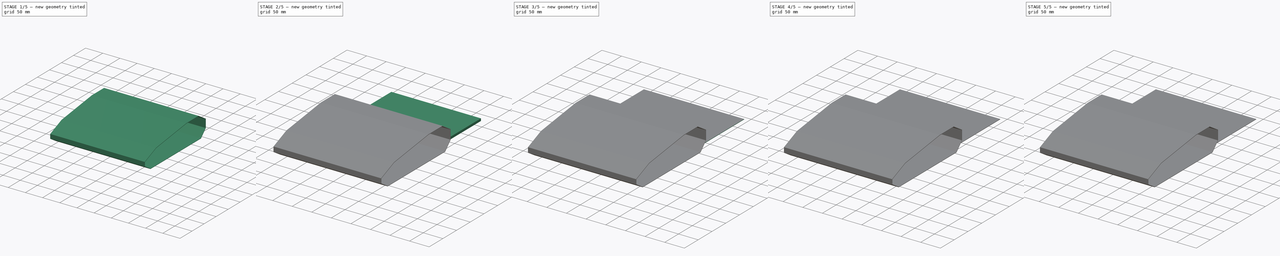
[diagram: build sequence overview — one tinted view per stage of 5, left to right]
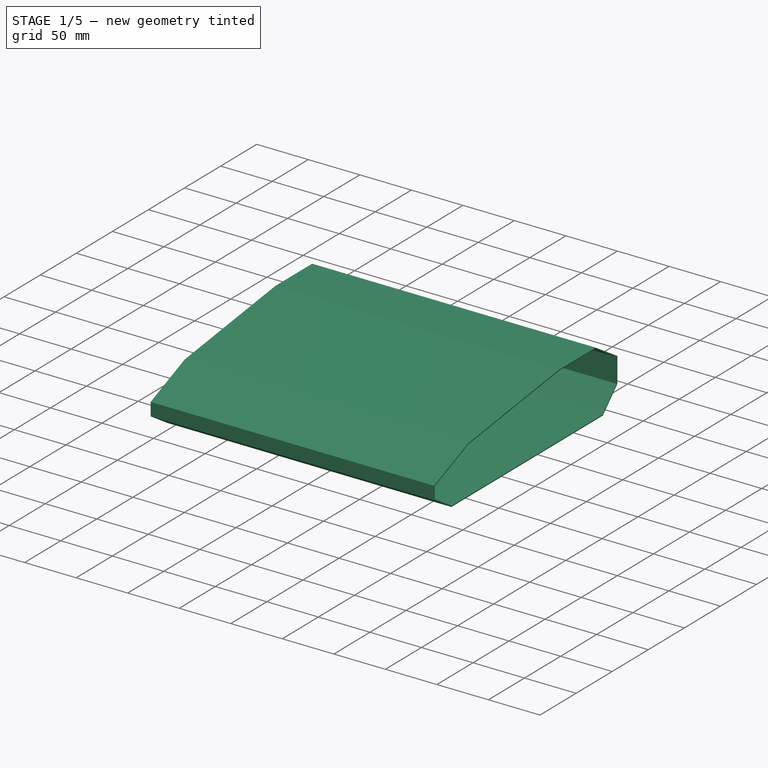
[diagram: stage 1 of 5 — iso view after this stage's code; geometry added in this stage tinted green]
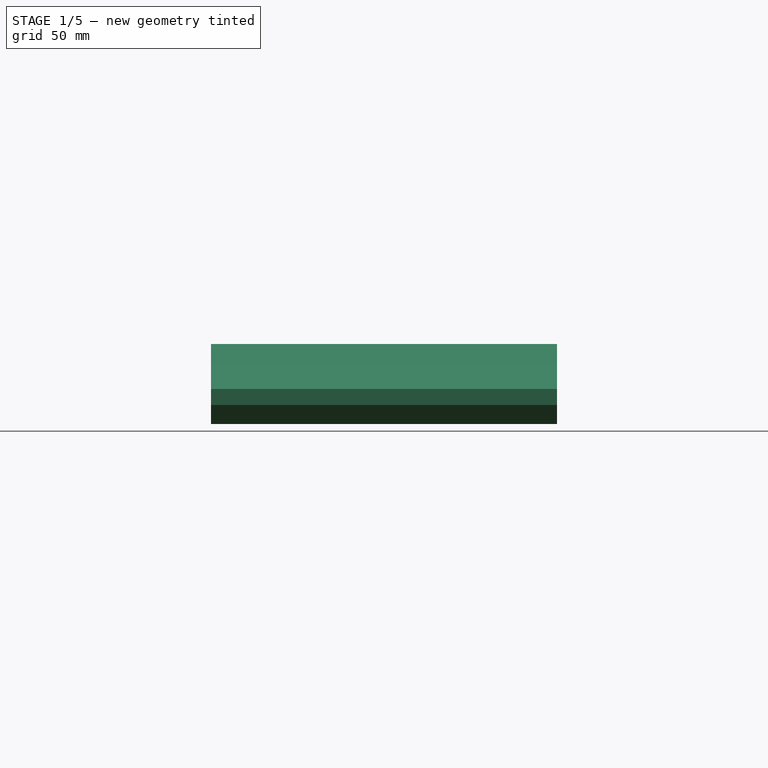
[diagram: stage 1 of 5 — front view after this stage's code; geometry added in this stage tinted green]
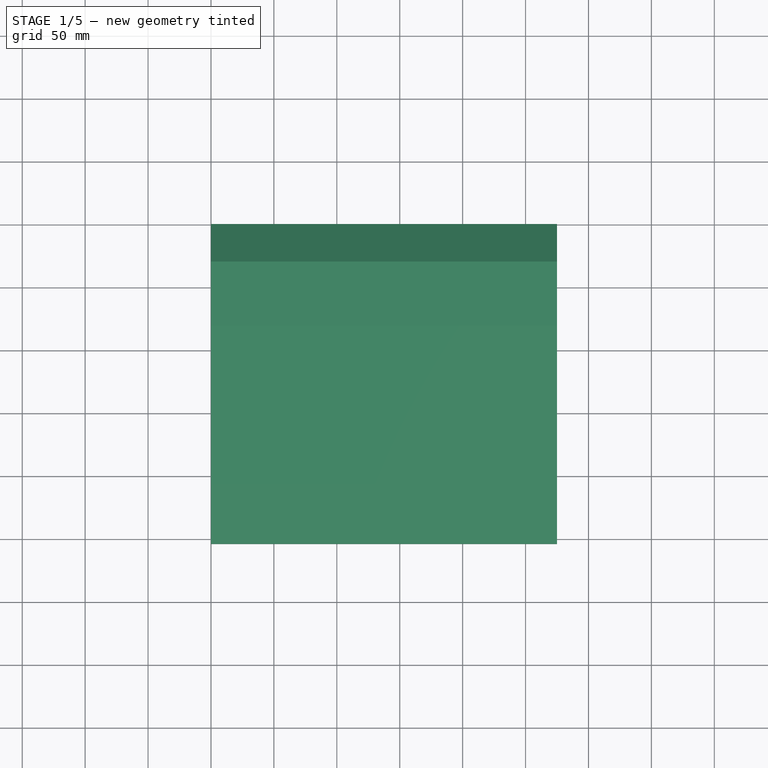
[diagram: stage 1 of 5 — top view after this stage's code; geometry added in this stage tinted green]
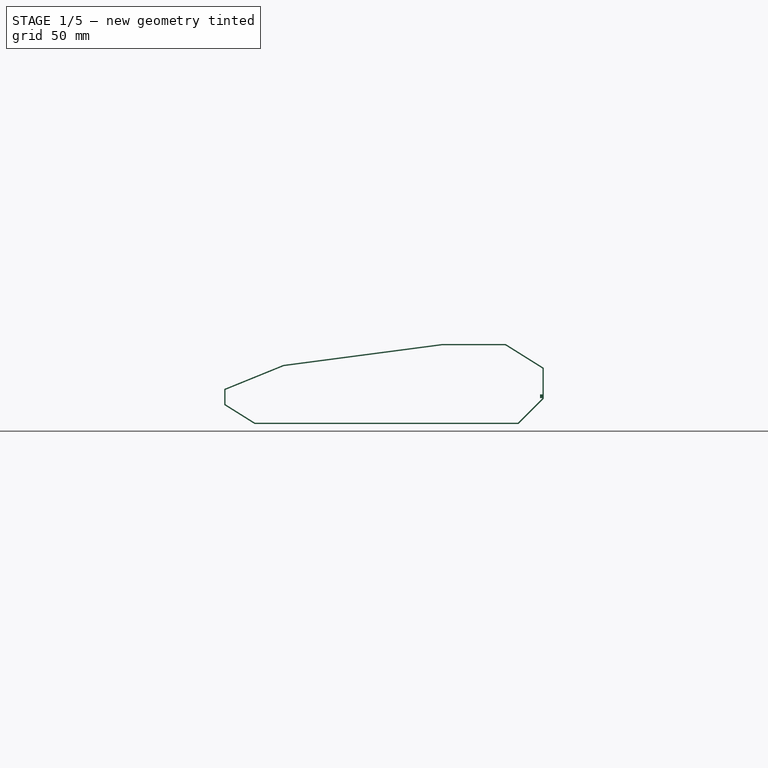
[diagram: stage 1 of 5 — right view after this stage's code; geometry added in this stage tinted green]
FCSTD DOCUMENT  (FreeCAD 0.18R)
Label: cyberdeck-alternatecase
License: All rights reserved
LicenseURL: http://en.wikipedia.org/wiki/All_rights_reserved
objects: Sketcher::SketchObject×10, PartDesign::Pad×8, PartDesign::Body×4, App::Part×4, PartDesign::Thickness×3, PartDesign::Chamfer×2, PartDesign::Pocket×1, PartDesign::AdditivePipe×1
note: 39 computed .brp shape members not serialized (recipe doc carries the construction recipe); baked Part::Feature solids carry a one-line shape summary decoded from their .brp

FEATURE [PartDesign::Body] Body001  label="Right"
  Group = -> [Sketch002,Pad002,Thickness001,Sketch003,Pocket,Chamfer001]
  Origin = -> Origin001
  Tip = -> Chamfer001
FEATURE [App::Part] Part001  label="Right Cap"
  Group = -> [Body001]
  Origin = -> Origin003
  Placement = pos=(-164,0,0) rot=(0,0,1;0rad)
FEATURE [Sketcher::SketchObject] Sketch004
  MapMode = 5
  Placement = pos=(0,0,0) rot=(0.57735,0.57735,0.57735;2.0944rad)
  Support = -> [YZ_Plane006]
  sketch-geometry (9):
    g0: LineSegment StartX=-229.899 StartY=-1.8e-15 StartZ=0 EndX=-20.1045 EndY=-1.8e-15 EndZ=0
    g1: LineSegment StartX=-20.1045 StartY=-1.8e-15 StartZ=0 EndX=0 EndY=20.1045 EndZ=0
    g2: LineSegment StartX=0 StartY=20.1045 StartZ=0 EndX=0 EndY=44.5808 EndZ=0
    g3: LineSegment StartX=-81.03 StartY=63.5 StartZ=0 EndX=-206.943 EndY=46.9232 EndZ=0
    g4: LineSegment StartX=-254 StartY=27.7835 StartZ=0 EndX=-254 EndY=15.0835 EndZ=0
    g5: LineSegment StartX=-254 StartY=15.0835 StartZ=0 EndX=-229.899 EndY=-1.8e-15 EndZ=0
    g6: LineSegment StartX=-81.03 StartY=63.5 StartZ=0 EndX=-30.23 EndY=63.5 EndZ=0
    g7: LineSegment StartX=-30.23 StartY=63.5 StartZ=0 EndX=0 EndY=44.5808 EndZ=0
    g8: LineSegment StartX=-206.943 StartY=46.9232 StartZ=0 EndX=-254 EndY=27.7835 EndZ=0
  constraints (27):
    c: Coincident(g0,g1)
    c: Coincident(g1,g2)
    c: Coincident(g4,g5)
    c: Coincident(g5,g0)
    c: Vertical(g2)
    c: Horizontal(g0)
    c: Vertical(g4)
    c: Distance(g3) = 127
    c: Angle(g0,g3) = 0.1309
    c: Horizontal(g6)
    c: Coincident(g6,g7)
    c: Coincident(g2,g7)
    c: Coincident(g6,g3)
    c: Equal(g5,g1)
    c: Coincident(g8,g4)
    c: Coincident(g8,g3)
    c: Distance(g8) = 50.8
    c: Equal(g8,g6)
    c: DistanceY(g0,g6) = 63.5
    c: DistanceX(g4,g2) = 254
    c: Angle(g1,g0) = 2.35619
    c: Parallel(g7,g5)
    c: Angle(g6,g7) = 2.58239
    c: DistanceX(g4,g3) = 172.97
    c: DistanceY(g4,g4) = 12.7
    c: Vertical(g1,g-1)
    c: Horizontal(g0,g-1)
FEATURE [PartDesign::Pad] Pad003
  Length = 275
  Length2 = 100
  Placement = pos=(0,0,0) rot=(0.57735,0.57735,0.57735;2.0944rad)
  Profile = -> Sketch004
  Type = 0
FEATURE [PartDesign::Body] Body004  label="LCD"
  Group = -> [Sketch007,Pad006,Sketch008,Pad007]
  Origin = -> Origin008
  Tip = -> Pad007
FEATURE [App::Part] Part003  label="Display"
  Group = -> [Body004]
  Origin = -> Origin006
  Placement = pos=(-446,-157.314,88.8481) rot=(1,0,0;0.1309rad)
FEATURE [PartDesign::Thickness] Thickness002
  Base = -> Pad003 [Face11,Face10]
  BaseFeature = -> Pad003
  Join = 0
  Mode = 0
  Reversed = true
  Value = 1
FEATURE [Sketcher::SketchObject] Sketch009
  ExternalGeometry = -> [Thickness002]
  MapMode = 5
  Placement = pos=(-4e-16,-1,3e-16) rot=(1,0,0;1.5708rad)
  Support = -> [Thickness002]
  sketch-geometry (4):
    g0: LineSegment StartX=3 StartY=23.5187 StartZ=0 EndX=-1.15e-14 EndY=23.5187 EndZ=0
    g1: LineSegment StartX=-1.15e-14 StartY=23.5187 StartZ=0 EndX=-1.15e-14 EndY=20.5187 EndZ=0
    g2: LineSegment StartX=-1.15e-14 StartY=20.5187 StartZ=0 EndX=3 EndY=20.5187 EndZ=0
    g3: LineSegment StartX=3 StartY=20.5187 StartZ=0 EndX=3 EndY=23.5187 EndZ=0
  constraints (11):
    c: Coincident(g0,g1)
    c: Coincident(g2,g3)
    c: Coincident(g3,g0)
    c: Horizontal(g0)
    c: Horizontal(g2)
    c: Vertical(g1)
    c: Vertical(g3)
    c: DistanceY(g1,g1) = 3
    c: Coincident(g1,g-3)
    c: Coincident(g2,g1)
    c: Equal(g0,g1)
FEATURE [PartDesign::Pad] Pad008
  BaseFeature = -> Thickness002
  Length = 2
  Length2 = 100
  Profile = -> Sketch009
  Type = 0
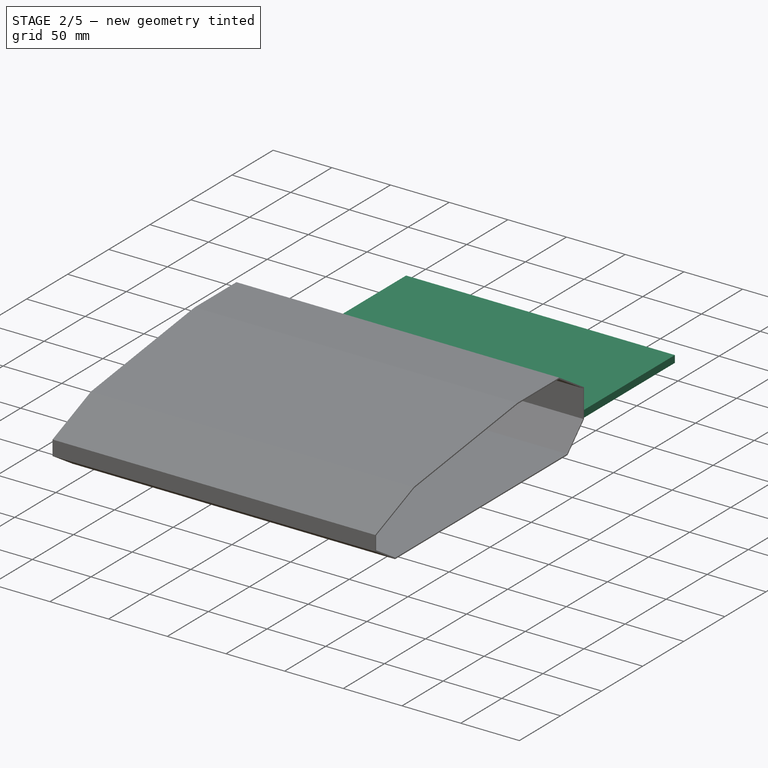
[diagram: stage 2 of 5 — iso view after this stage's code; geometry added in this stage tinted green]
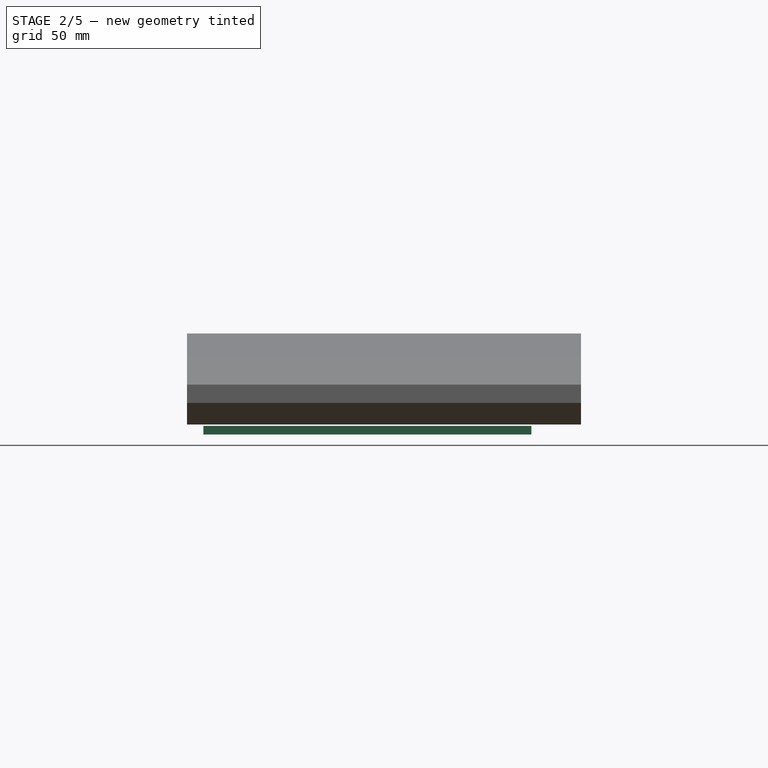
[diagram: stage 2 of 5 — front view after this stage's code; geometry added in this stage tinted green]
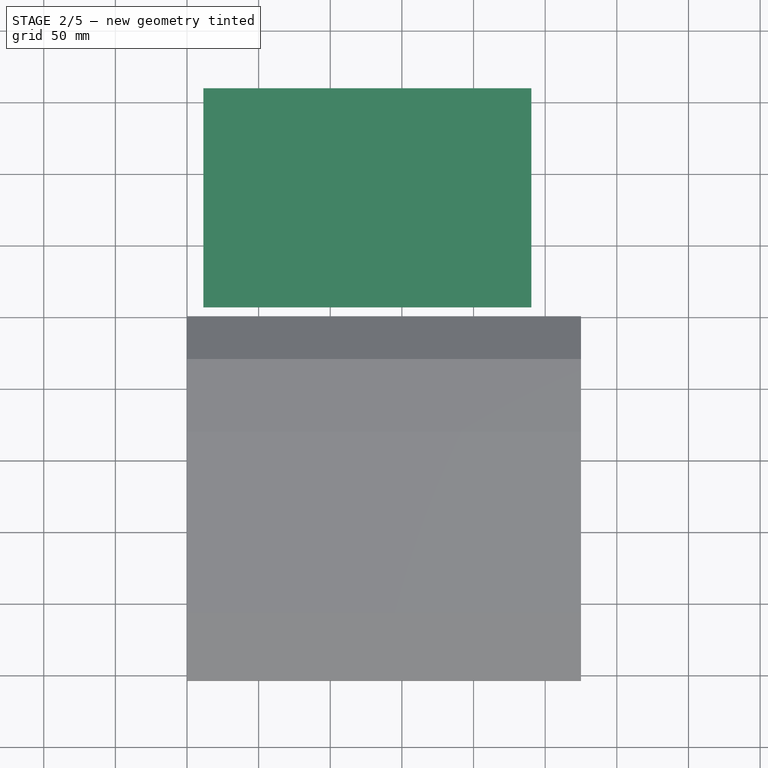
[diagram: stage 2 of 5 — top view after this stage's code; geometry added in this stage tinted green]
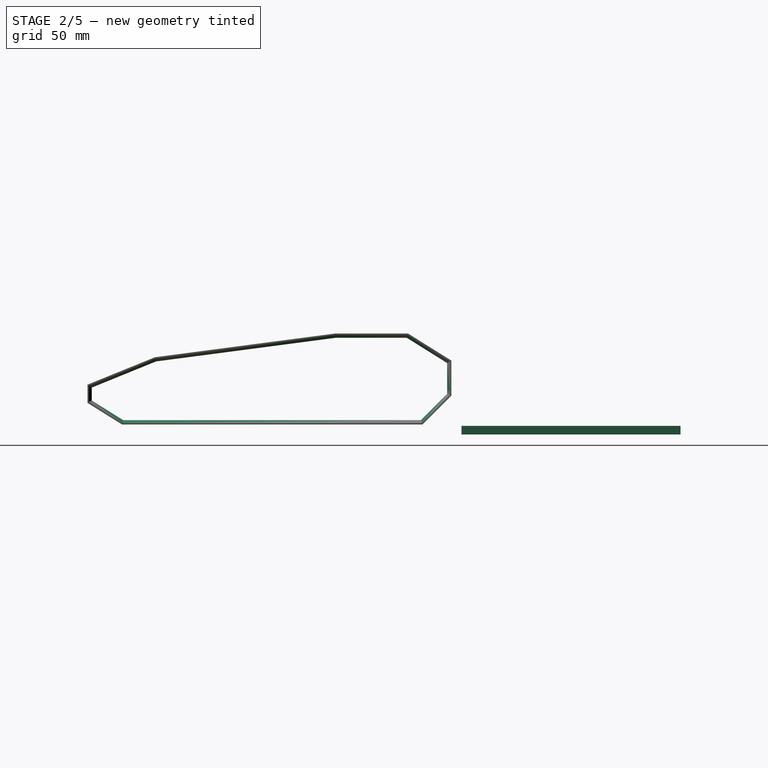
[diagram: stage 2 of 5 — right view after this stage's code; geometry added in this stage tinted green]
FEATURE [Sketcher::SketchObject] Sketch007
  AttachmentOffset = pos=(0,0,-7) rot=(0,0,1;0rad)
  MapMode = 5
  Placement = pos=(0,0,-7) rot=(0,0,1;0rad)
  Support = -> [XY_Plane008]
  sketch-geometry (4):
    g0: LineSegment StartX=11.4 StartY=159.95 StartZ=0 EndX=240.4 EndY=159.95 EndZ=0
    g1: LineSegment StartX=240.4 StartY=159.95 StartZ=0 EndX=240.4 EndY=7.05 EndZ=0
    g2: LineSegment StartX=240.4 StartY=7.05 StartZ=0 EndX=11.4 EndY=7.05 EndZ=0
    g3: LineSegment StartX=11.4 StartY=7.05 StartZ=0 EndX=11.4 EndY=159.95 EndZ=0
  constraints (12):
    c: Coincident(g0,g1)
    c: Coincident(g1,g2)
    c: Coincident(g2,g3)
    c: Coincident(g3,g0)
    c: Horizontal(g0)
    c: Horizontal(g2)
    c: Vertical(g1)
    c: Vertical(g3)
    c: DistanceX(g2,g2) = 229
    c: DistanceY(g1,g1) = 152.9
    c: DistanceX(g-1,g2) = 11.4
    c: DistanceY(g-1,g2) = 7.05
FEATURE [PartDesign::Pad] Pad006
  Length = 6
  Length2 = 100
  Profile = -> Sketch007
  Type = 0
FEATURE [Sketcher::SketchObject] Sketch010
  ExternalGeometry = -> [Pad008]
  MapMode = 5
  Placement = pos=(0,5.2e-15,23.5187) rot=(0,0,1;0rad)
  Support = -> [Pad008]
  sketch-geometry (5):
    g0: LineSegment StartX=3 StartY=-3 StartZ=0 EndX=5 EndY=-1 EndZ=0
    g1: LineSegment StartX=5.0093 StartY=-0.992624 StartZ=0 EndX=3.0093 EndY=-0.992624 EndZ=0
    g2: LineSegment StartX=3 StartY=-3 StartZ=0 EndX=3 EndY=-1 EndZ=0
    g3: LineSegment StartX=3.39827 StartY=-0.662669 StartZ=0 EndX=4.61766 EndY=-0.694255 EndZ=0
    g4: LineSegment StartX=3 StartY=-1 StartZ=0 EndX=5 EndY=-1 EndZ=0
  constraints (7):
    c: Coincident(g0,g-5)
    c: PointOnObject(g0,g-3)
    c: Angle(g0,g-5) = 2.35619
    c: Coincident(g2,g-3)
    c: Coincident(g2,g0)
    c: Coincident(g4,g0)
    c: Coincident(g2,g4)
FEATURE [PartDesign::Pad] Pad009
  BaseFeature = -> Pad008
  Length = 10
  Length2 = 100
  Profile = -> Sketch010
  Reversed = true
  Type = 3
  UpToFace = -> Pad008 [Face23]
FEATURE [Sketcher::SketchObject] Sketch011
  ExternalGeometry = -> [Pad009]
  MapMode = 5
  Placement = pos=(0,5.2e-15,23.5187) rot=(0,0,1;0rad)
  Support = -> [Pad009]
  sketch-geometry (4):
    g0: LineSegment StartX=-1.2e-14 StartY=-1 StartZ=0 EndX=5 EndY=-1 EndZ=0
    g1: LineSegment StartX=5 StartY=-1 StartZ=0 EndX=3 EndY=-3 EndZ=0
    g2: LineSegment StartX=-1.29e-14 StartY=-3 StartZ=0 EndX=3 EndY=-3 EndZ=0
    g3: LineSegment StartX=-1.2e-14 StartY=-1 StartZ=0 EndX=-1.29e-14 EndY=-3 EndZ=0
  constraints (8):
    c: Coincident(g-4,g0)
    c: Coincident(g0,g-5)
    c: Coincident(g1,g-3)
    c: Coincident(g1,g0)
    c: Coincident(g2,g1)
    c: Coincident(g-3,g2)
    c: Coincident(g3,g2)
    c: Coincident(g3,g0)
FEATURE [PartDesign::AdditivePipe] AdditivePipe
  AuxilleryCurvelinear = true
  AuxillerySpineTangent = false
  BaseFeature = -> Pad009
  Binormal = (0,0,0)
  Mode = 0
  Profile = -> Sketch011
  Spine = -> Pad009 [Edge21,Edge19,Edge18,Edge17,Edge26,Edge25,Edge24,Edge23,Edge22]
  SpineTangent = false
  Transformation = 0
  Transition = 1
FEATURE [PartDesign::Body] Body002
  Group = -> [Sketch004,Pad003,Thickness002,Sketch009,Pad008,Sketch010,Pad009,Sketch011,AdditivePipe]
  Origin = -> Origin005
  Tip = -> AdditivePipe
FEATURE [App::Part] Part002  label="Body"
  Group = -> [Body002]
  Origin = -> Origin004
  Placement = pos=(-455,0,0) rot=(0,0,1;0rad)
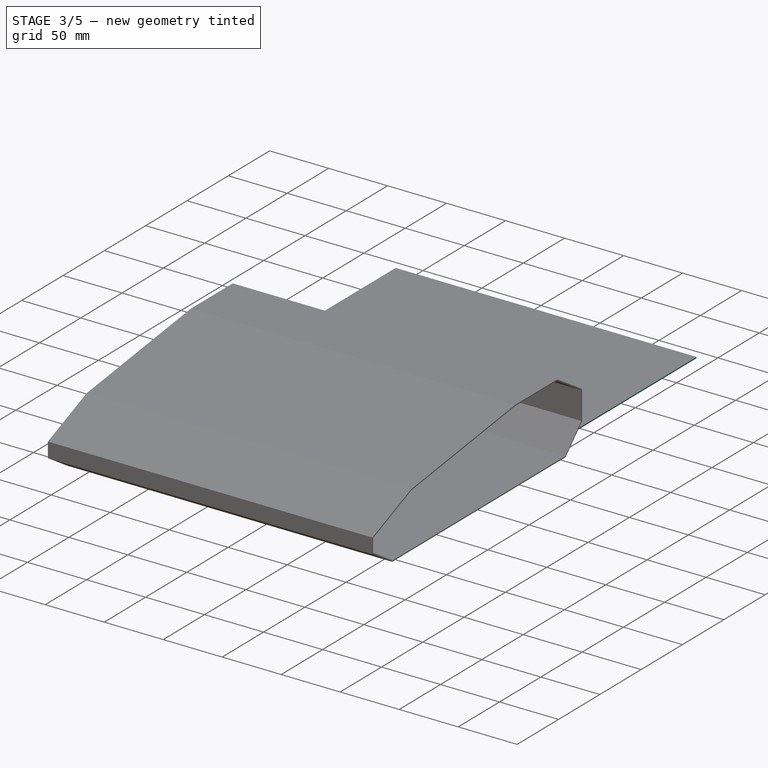
[diagram: stage 3 of 5 — iso view after this stage's code; geometry added in this stage tinted green]
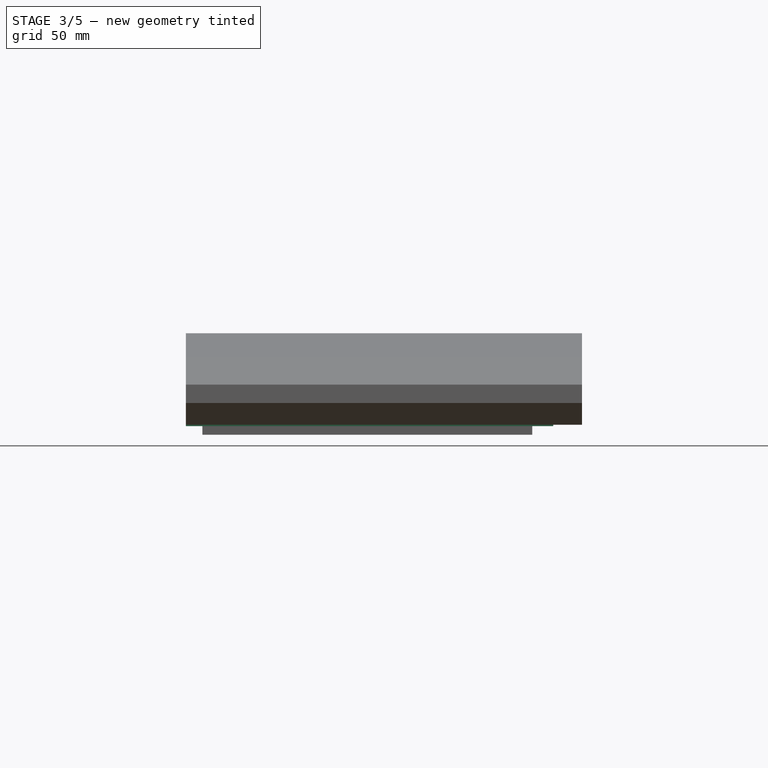
[diagram: stage 3 of 5 — front view after this stage's code; geometry added in this stage tinted green]
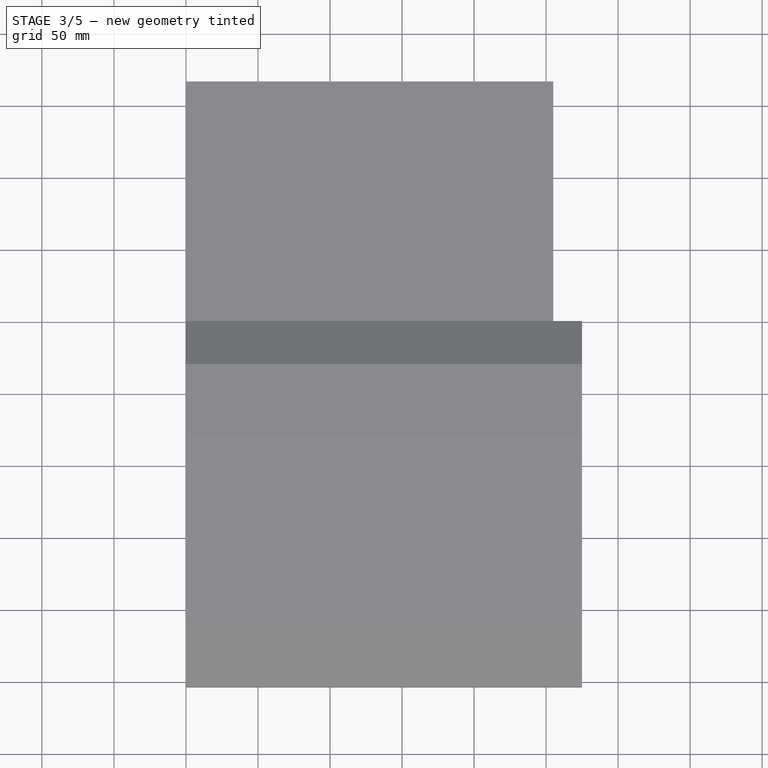
[diagram: stage 3 of 5 — top view after this stage's code; geometry added in this stage tinted green]
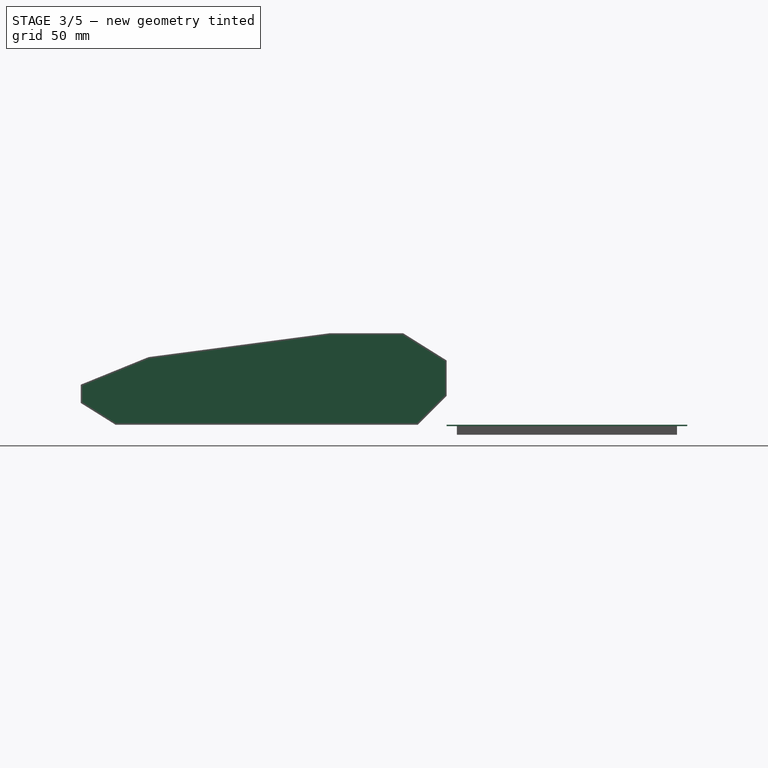
[diagram: stage 3 of 5 — right view after this stage's code; geometry added in this stage tinted green]
FEATURE [Sketcher::SketchObject] Sketch002
  MapMode = 5
  Placement = pos=(0,0,0) rot=(0.57735,0.57735,0.57735;2.0944rad)
  Support = -> [YZ_Plane001]
  sketch-geometry (9):
    g0: LineSegment StartX=-229.899 StartY=-1.8e-15 StartZ=0 EndX=-20.1045 EndY=-1.8e-15 EndZ=0
    g1: LineSegment StartX=-20.1045 StartY=-1.8e-15 StartZ=0 EndX=0 EndY=20.1045 EndZ=0
    g2: LineSegment StartX=0 StartY=20.1045 StartZ=0 EndX=0 EndY=44.5808 EndZ=0
    g3: LineSegment StartX=-81.03 StartY=63.5 StartZ=0 EndX=-206.943 EndY=46.9232 EndZ=0
    g4: LineSegment StartX=-254 StartY=27.7835 StartZ=0 EndX=-254 EndY=15.0835 EndZ=0
    g5: LineSegment StartX=-254 StartY=15.0835 StartZ=0 EndX=-229.899 EndY=-1.8e-15 EndZ=0
    g6: LineSegment StartX=-81.03 StartY=63.5 StartZ=0 EndX=-30.23 EndY=63.5 EndZ=0
    g7: LineSegment StartX=-30.23 StartY=63.5 StartZ=0 EndX=3.6e-15 EndY=44.5808 EndZ=0
    g8: LineSegment StartX=-206.943 StartY=46.9232 StartZ=0 EndX=-254 EndY=27.7835 EndZ=0
  constraints (27):
    c: Coincident(g0,g1)
    c: Coincident(g1,g2)
    c: Coincident(g4,g5)
    c: Coincident(g5,g0)
    c: Vertical(g2)
    c: Horizontal(g0)
    c: Vertical(g4)
    c: Distance(g3) = 127
    c: Angle(g0,g3) = 0.1309
    c: Horizontal(g6)
    c: Coincident(g6,g7)
    c: Coincident(g2,g7)
    c: Coincident(g6,g3)
    c: Equal(g5,g1)
    c: Coincident(g8,g4)
    c: Coincident(g8,g3)
    c: Distance(g8) = 50.8
    c: Equal(g8,g6)
    c: DistanceY(g0,g6) = 63.5
    c: DistanceX(g4,g2) = 254
    c: Angle(g1,g0) = 2.35619
    c: Parallel(g7,g5)
    c: Angle(g6,g7) = 2.58239
    c: DistanceX(g4,g3) = 172.97
    c: DistanceY(g4,g4) = 12.7
    c: Vertical(g1,g-1)
    c: Horizontal(g0,g-1)
FEATURE [PartDesign::Pad] Pad002
  Length = 25.4
  Length2 = 100
  Placement = pos=(0,0,0) rot=(0.57735,0.57735,0.57735;2.0944rad)
  Profile = -> Sketch002
  Type = 0
FEATURE [PartDesign::Thickness] Thickness001
  Base = -> Pad002 [Face10]
  BaseFeature = -> Pad002
  Join = 1
  Mode = 0
  Reversed = true
  Value = 6
FEATURE [Sketcher::SketchObject] Sketch008
  ExternalGeometry = -> [Pad006]
  MapMode = 5
  Placement = pos=(0,0,-1) rot=(0,0,1;0rad)
  Support = -> [Pad006]
  sketch-geometry (4):
    g0: LineSegment StartX=0 StartY=167 StartZ=0 EndX=255 EndY=167 EndZ=0
    g1: LineSegment StartX=255 StartY=167 StartZ=0 EndX=255 EndY=0 EndZ=0
    g2: LineSegment StartX=255 StartY=0 StartZ=0 EndX=0 EndY=0 EndZ=0
    g3: LineSegment StartX=0 StartY=0 StartZ=0 EndX=0 EndY=167 EndZ=0
  constraints (12):
    c: Coincident(g0,g1)
    c: Coincident(g1,g2)
    c: Coincident(g2,g3)
    c: Coincident(g3,g0)
    c: Horizontal(g0)
    c: Horizontal(g2)
    c: Vertical(g1)
    c: Vertical(g3)
    c: DistanceX(g2,g-4) = 11.4
    c: DistanceY(g2,g-4) = 7.05
    c: DistanceY(g1,g1) = 167
    c: DistanceX(g0,g0) = 255
FEATURE [PartDesign::Pad] Pad007
  BaseFeature = -> Pad006
  Length = 1
  Length2 = 100
  Profile = -> Sketch008
  Type = 0
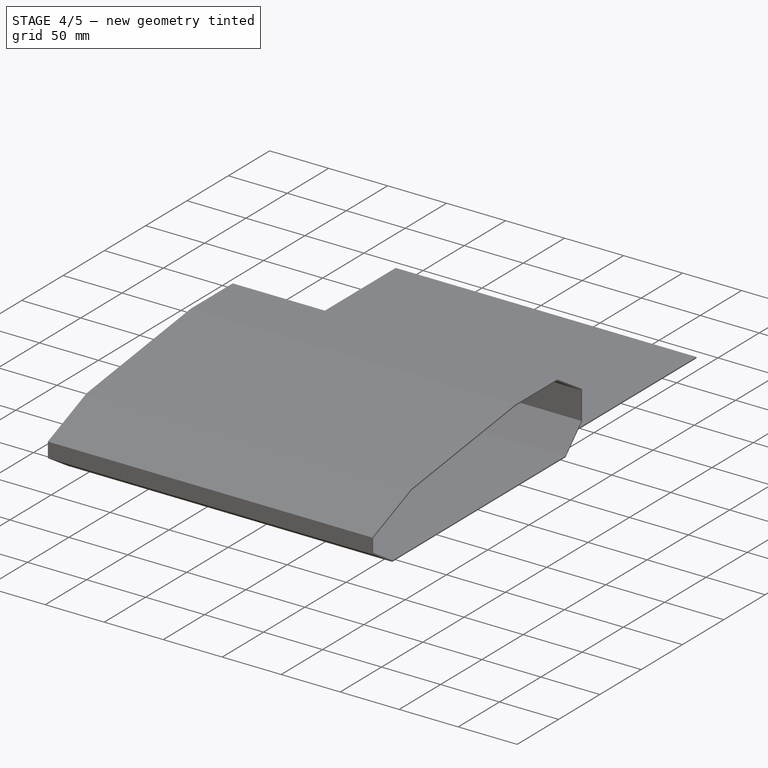
[diagram: stage 4 of 5 — iso view after this stage's code; geometry added in this stage tinted green]
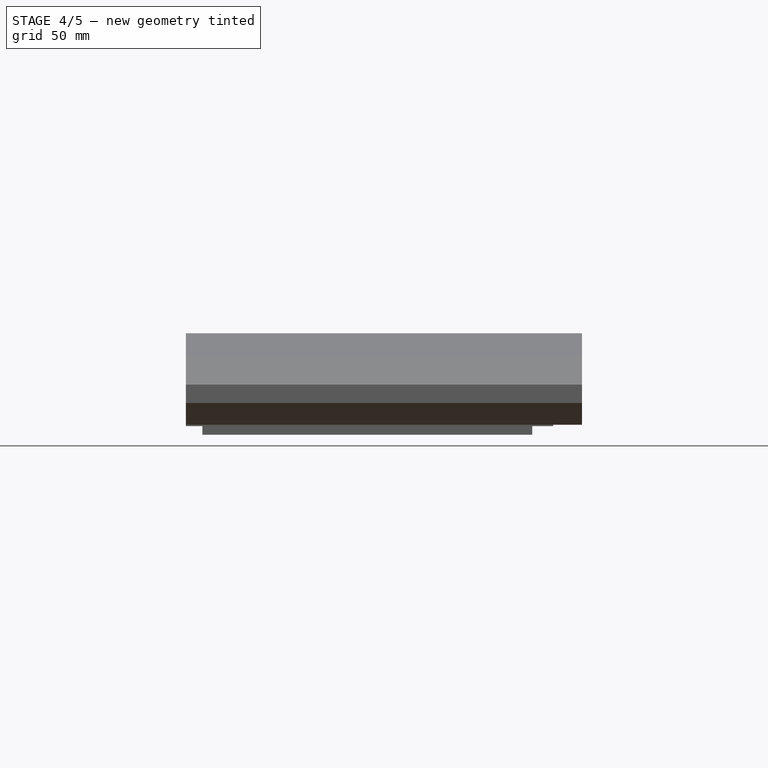
[diagram: stage 4 of 5 — front view after this stage's code; geometry added in this stage tinted green]
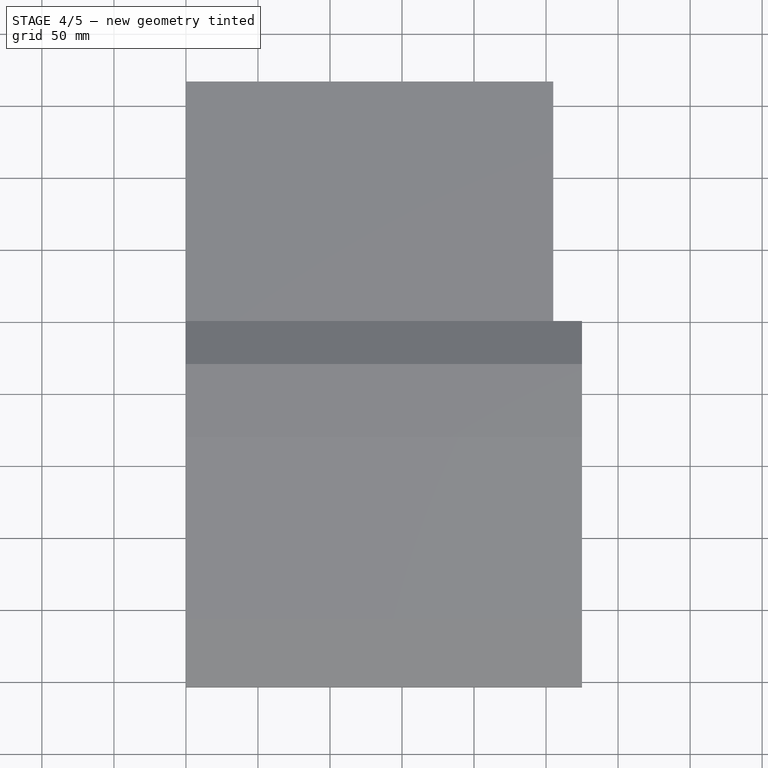
[diagram: stage 4 of 5 — top view after this stage's code; geometry added in this stage tinted green]
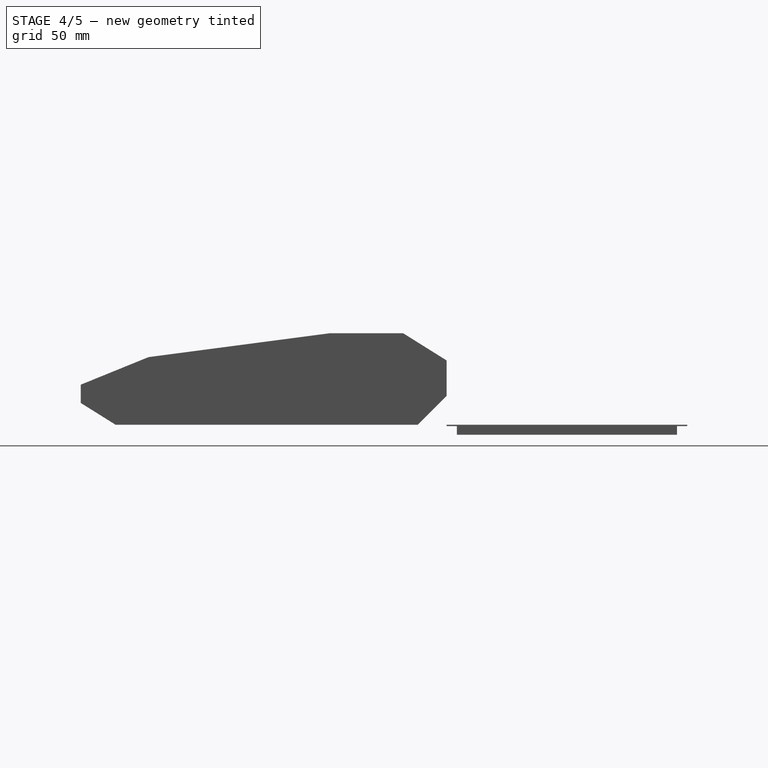
[diagram: stage 4 of 5 — right view after this stage's code; geometry added in this stage tinted green]
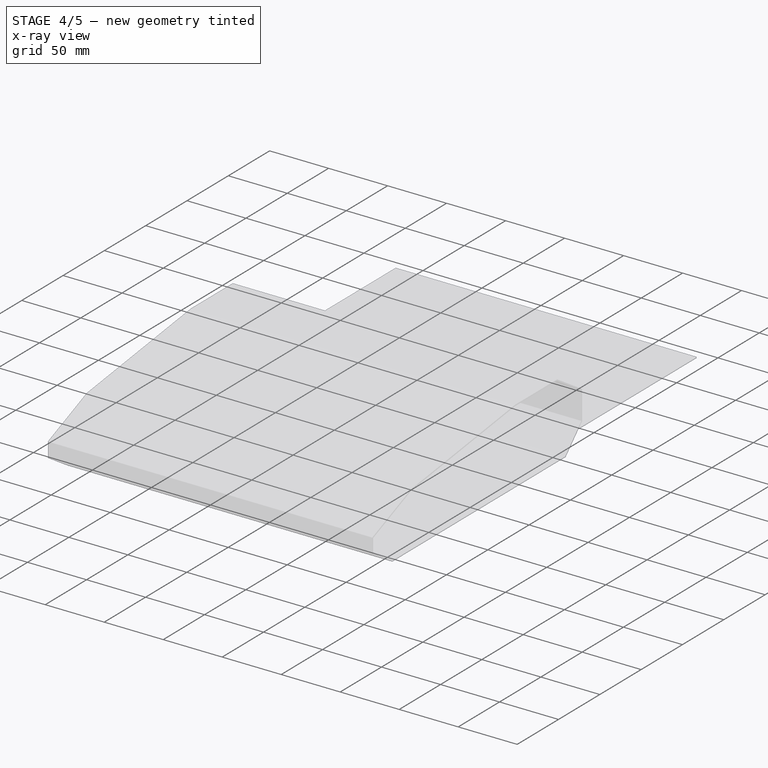
[diagram: stage 4 of 5 — x-ray composite at the iso view; earlier geometry ghosted, this stage's added geometry solid]
FEATURE [Sketcher::SketchObject] Sketch
  MapMode = 5
  Placement = pos=(0,0,0) rot=(0.57735,0.57735,0.57735;2.0944rad)
  Support = -> [YZ_Plane]
  sketch-geometry (9):
    g0: LineSegment StartX=-229.899 StartY=-1.8e-15 StartZ=0 EndX=-20.1045 EndY=-1.8e-15 EndZ=0
    g1: LineSegment StartX=-20.1045 StartY=-1.8e-15 StartZ=0 EndX=0 EndY=20.1045 EndZ=0
    g2: LineSegment StartX=0 StartY=20.1045 StartZ=0 EndX=0 EndY=44.5808 EndZ=0
    g3: LineSegment StartX=-81.03 StartY=63.5 StartZ=0 EndX=-206.943 EndY=46.9232 EndZ=0
    g4: LineSegment StartX=-254 StartY=27.7835 StartZ=0 EndX=-254 EndY=15.0835 EndZ=0
    g5: LineSegment StartX=-254 StartY=15.0835 StartZ=0 EndX=-229.899 EndY=-1.8e-15 EndZ=0
    g6: LineSegment StartX=-81.03 StartY=63.5 StartZ=0 EndX=-30.23 EndY=63.5 EndZ=0
    g7: LineSegment StartX=-30.23 StartY=63.5 StartZ=0 EndX=3.6e-15 EndY=44.5808 EndZ=0
    g8: LineSegment StartX=-206.943 StartY=46.9232 StartZ=0 EndX=-254 EndY=27.7835 EndZ=0
  constraints (27):
    c: Coincident(g0,g1)
    c: Coincident(g1,g2)
    c: Coincident(g4,g5)
    c: Coincident(g5,g0)
    c: Vertical(g2)
    c: Horizontal(g0)
    c: Vertical(g4)
    c: Distance(g3) = 127
    c: Angle(g0,g3) = 0.1309
    c: Horizontal(g6)
    c: Coincident(g6,g7)
    c: Coincident(g2,g7)
    c: Coincident(g6,g3)
    c: Equal(g5,g1)
    c: Coincident(g8,g4)
    c: Coincident(g8,g3)
    c: Distance(g8) = 50.8
    c: Equal(g8,g6)
    c: DistanceY(g0,g6) = 63.5
    c: DistanceX(g4,g2) = 254
    c: Angle(g1,g0) = 2.35619
    c: Parallel(g7,g5)
    c: Angle(g6,g7) = 2.58239
    c: DistanceX(g4,g3) = 172.97
    c: DistanceY(g4,g4) = 12.7
    c: Vertical(g1,g-1)
    c: Horizontal(g0,g-1)
FEATURE [PartDesign::Pad] Pad
  Length = 25.4
  Length2 = 100
  Placement = pos=(0,0,0) rot=(0.57735,0.57735,0.57735;2.0944rad)
  Profile = -> Sketch
  Type = 0
FEATURE [Sketcher::SketchObject] Sketch003
  ExternalGeometry = -> [Thickness001]
  MapMode = 5
  Placement = pos=(-3e-16,0,0) rot=(0.57735,0.57735,0.57735;2.0944rad)
  Support = -> [Thickness001]
  sketch-geometry (27):
    g0: LineSegment StartX=-251.05 StartY=25.7987 StartZ=0 EndX=-206.183 EndY=44.0479 EndZ=0
    g1: LineSegment StartX=-206.183 StartY=44.0479 StartZ=0 EndX=-80.8366 EndY=60.55 EndZ=0
    g2: LineSegment StartX=-80.8366 StartY=60.55 StartZ=0 EndX=-31.077 EndY=60.55 EndZ=0
    g3: LineSegment StartX=-31.077 StartY=60.55 StartZ=0 EndX=-2.95 EndY=42.947 EndZ=0
    g4: LineSegment StartX=-251.05 StartY=25.7987 StartZ=0 EndX=-251.05 EndY=16.7174 EndZ=0
    g5: LineSegment StartX=-251.05 StartY=16.7174 StartZ=0 EndX=-229.052 EndY=2.95 EndZ=0
    g6: LineSegment StartX=-229.052 StartY=2.95 StartZ=0 EndX=-21.3265 EndY=2.95 EndZ=0
    g7: LineSegment StartX=-21.3265 StartY=2.95 StartZ=0 EndX=-2.95 EndY=21.3265 EndZ=0
    g8: LineSegment StartX=-2.95 StartY=42.947 StartZ=0 EndX=-2.95 EndY=21.3265 EndZ=0
    g9: LineSegment [constr] StartX=-205.397 StartY=41.0751 StartZ=0 EndX=-206.546 EndY=43.9003 EndZ=0
    g10: LineSegment [constr] StartX=-205.397 StartY=41.0751 StartZ=0 EndX=-205.795 EndY=44.099 EndZ=0
    g11: LineSegment [constr] StartX=-248 StartY=23.7466 StartZ=0 EndX=-251.05 EndY=23.7466 EndZ=0
    g12: LineSegment [constr] StartX=-248 StartY=18.4067 StartZ=0 EndX=-249.618 EndY=15.8212 EndZ=0
    g13: LineSegment [constr] StartX=-228.176 StartY=6 StartZ=0 EndX=-228.176 EndY=2.95 EndZ=0
    g14: LineSegment [constr] StartX=-22.5898 StartY=6 StartZ=0 EndX=-20.4331 EndY=3.84332 EndZ=0
    g15: LineSegment [constr] StartX=-6 StartY=22.5898 StartZ=0 EndX=-2.95 EndY=22.5898 EndZ=0
    g16: LineSegment [constr] StartX=-6 StartY=41.2577 StartZ=0 EndX=-4.38194 EndY=43.8431 EndZ=0
    g17: LineSegment [constr] StartX=-31.9527 StartY=57.5 StartZ=0 EndX=-31.9527 EndY=60.55 EndZ=0
    g18: LineSegment StartX=-80.6367 StartY=57.5 StartZ=0 EndX=-31.9527 EndY=57.5 EndZ=0
    g19: LineSegment StartX=-31.9527 StartY=57.5 StartZ=0 EndX=-6 EndY=41.2577 EndZ=0
    g20: LineSegment StartX=-6 StartY=41.2577 StartZ=0 EndX=-6 EndY=22.5898 EndZ=0
    g21: LineSegment StartX=-6 StartY=22.5898 StartZ=0 EndX=-22.5898 EndY=6 EndZ=0
    g22: LineSegment StartX=-22.5898 StartY=6 StartZ=0 EndX=-228.176 EndY=6 EndZ=0
    g23: LineSegment StartX=-228.176 StartY=6 StartZ=0 EndX=-248 EndY=18.4067 EndZ=0
    g24: LineSegment StartX=-248 StartY=18.4067 StartZ=0 EndX=-248 EndY=23.7466 EndZ=0
    g25: LineSegment StartX=-248 StartY=23.7466 StartZ=0 EndX=-205.397 EndY=41.0751 EndZ=0
    g26: LineSegment StartX=-205.397 StartY=41.0751 StartZ=0 EndX=-80.6367 EndY=57.5 EndZ=0
  constraints (73):
    c: Coincident(g0,g1)
    c: Coincident(g1,g2)
    c: Coincident(g2,g3)
    c: Coincident(g4,g5)
    c: Coincident(g5,g6)
    c: Coincident(g6,g7)
    c: Coincident(g0,g4)
    c: Coincident(g8,g3)
    c: Coincident(g8,g7)
    c: Parallel(g0,g-3)
    c: Parallel(g1,g-4)
    c: Parallel(g2,g-5)
    c: Parallel(g3,g-6)
    c: Parallel(g8,g-11)
    c: Parallel(g7,g-7)
    c: Parallel(g6,g-8)
    c: Parallel(g5,g-9)
    c: Parallel(g-10,g4)
    c: Coincident(g9,g-4)
    c: PointOnObject(g9,g0)
    c: Perpendicular(g-3,g9)
    c: PointOnObject(g10,g1)
    c: Coincident(g10,g9)
    c: Perpendicular(g-4,g10)
    c: Equal(g10,g9)
    c: Distance(g10) = 3.05
    c: Coincident(g11,g-10)
    c: Perpendicular(g-10,g11)
    c: PointOnObject(g11,g4)
    c: Equal(g11,g10)
    c: Coincident(g12,g-10)
    c: PointOnObject(g12,g5)
    c: Perpendicular(g-9,g12)
    c: Equal(g11,g12)
    c: PointOnObject(g13,g6)
    c: Coincident(g13,g-9)
    c: Perpendicular(g-8,g13)
    c: Equal(g13,g12)
    c: Coincident(g14,g-8)
    c: PointOnObject(g14,g7)
    c: Perpendicular(g14,g-7)
    c: Coincident(g15,g-11)
    c: PointOnObject(g15,g8)
    c: Perpendicular(g15,g-11)
    c: Equal(g15,g14)
    c: Coincident(g16,g-11)
    c: PointOnObject(g16,g3)
    c: Perpendicular(g-6,g16)
    c: Equal(g16,g15)
    c: Coincident(g17,g-6)
    c: PointOnObject(g17,g2)
    c: Perpendicular(g-5,g17)
    c: Equal(g17,g16)
    c: Equal(g17,g10)
    c: Coincident(g-5,g18)
    c: Coincident(g18,g19)
    c: Coincident(g19,g16)
    c: Coincident(g19,g20)
    c: Coincident(g20,g15)
    c: Coincident(g20,g21)
    c: Coincident(g21,g14)
    c: Coincident(g21,g22)
    c: Coincident(g22,g23)
    c: Coincident(g23,g12)
    c: Coincident(g23,g24)
    c: Coincident(g24,g11)
    c: Coincident(g24,g25)
    c: Coincident(g25,g9)
    c: Coincident(g25,g26)
    c: Coincident(g26,g18)
    c: Equal(g16,g17)
    c: Coincident(g19,g-6)
    c: Coincident(g22,g13)
FEATURE [PartDesign::Pocket] Pocket
  BaseFeature = -> Thickness001
  Length = 5.05
  Length2 = 100
  Profile = -> Sketch003
  Reversed = true
  Type = 0
FEATURE [PartDesign::Body] Body  label="Left"
  Group = -> [Sketch,Pad,Thickness,Sketch001,Pad001,Chamfer]
  Origin = -> Origin
  Tip = -> Chamfer
FEATURE [App::Part] Part  label="Left Cap"
  Group = -> [Body]
  Origin = -> Origin002
  Placement = pos=(-488,0,0) rot=(0,0,1;0rad)
FEATURE [PartDesign::Chamfer] Chamfer001
  Base = -> Pocket [Edge22,Edge23,Edge24,Edge25,Edge17,Edge18,Edge19,Edge20,Edge21]
  BaseFeature = -> Pocket
  Size = 0.5
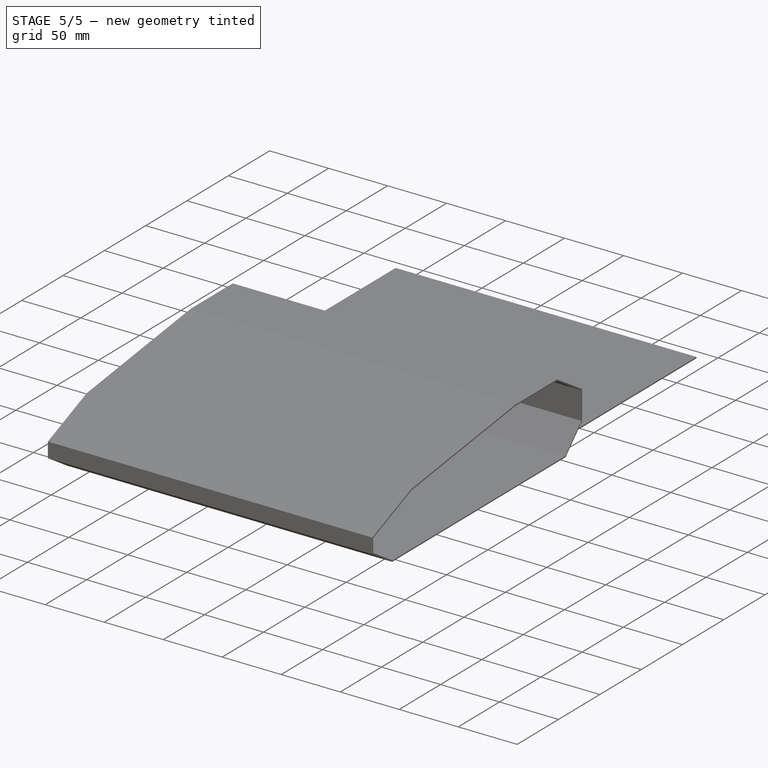
[diagram: stage 5 of 5 — iso view after this stage's code; geometry added in this stage tinted green]
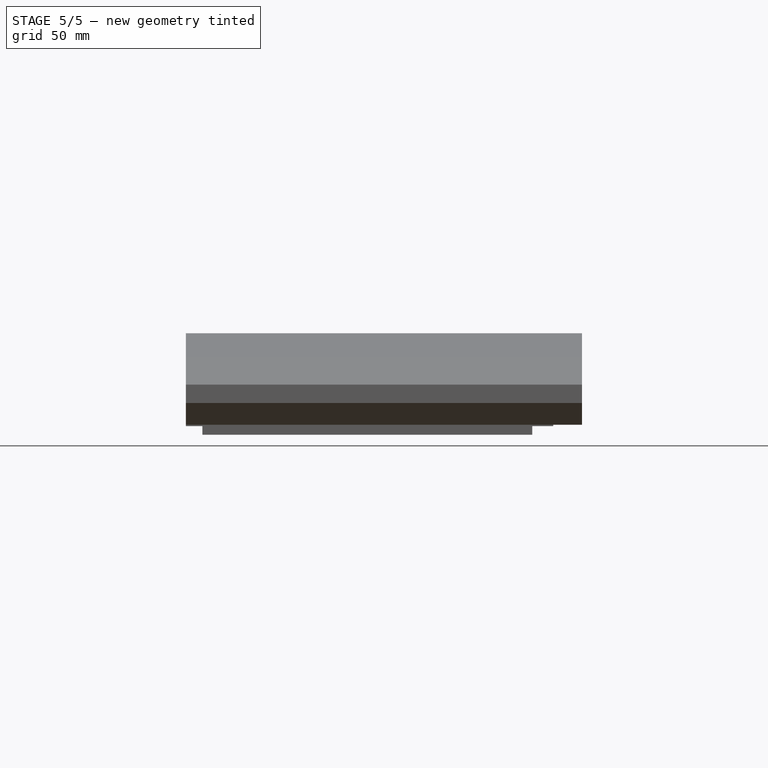
[diagram: stage 5 of 5 — front view after this stage's code; geometry added in this stage tinted green]
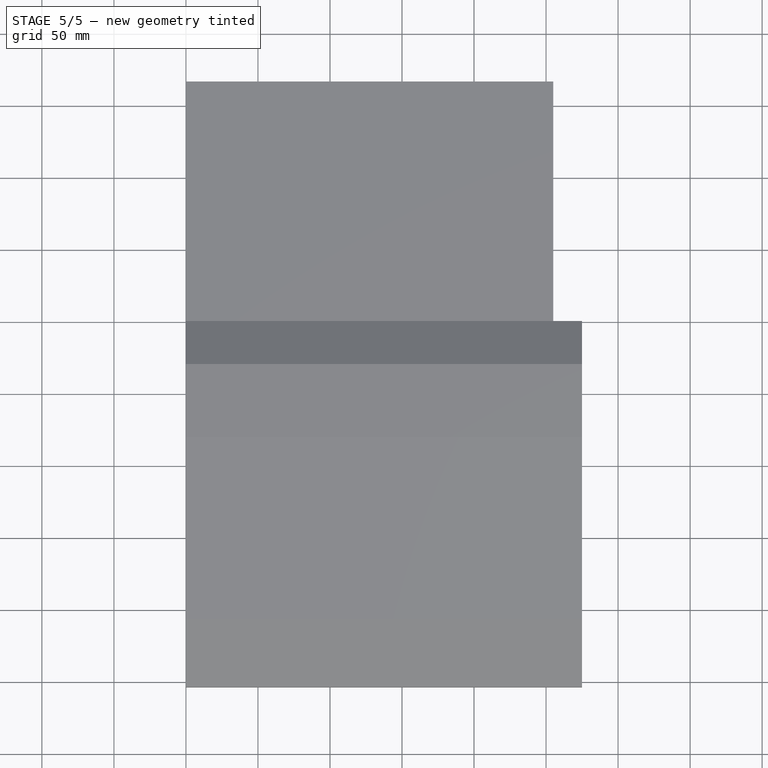
[diagram: stage 5 of 5 — top view after this stage's code; geometry added in this stage tinted green]
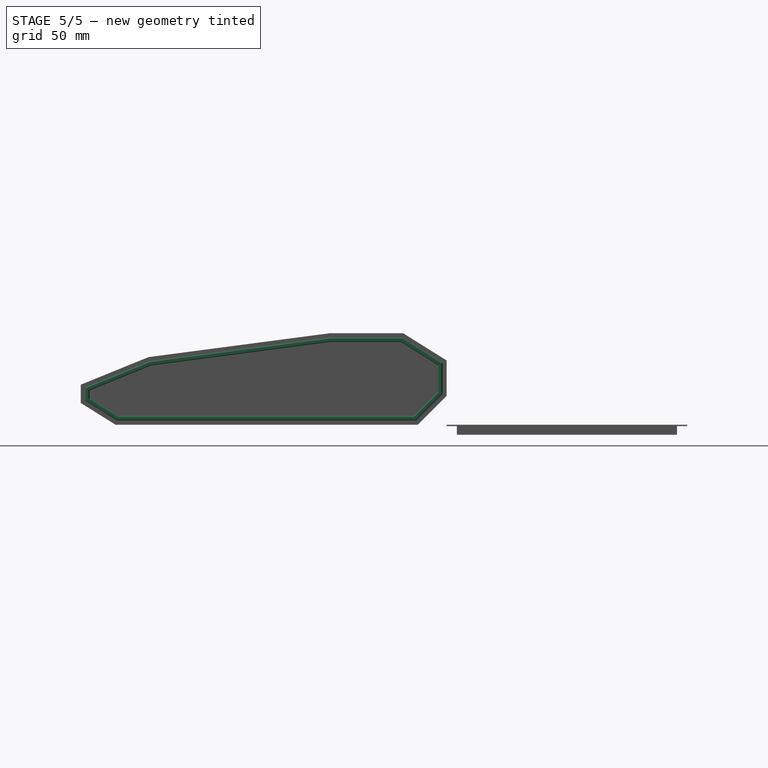
[diagram: stage 5 of 5 — right view after this stage's code; geometry added in this stage tinted green]
FEATURE [PartDesign::Thickness] Thickness
  Base = -> Pad [Face11]
  BaseFeature = -> Pad
  Join = 1
  Mode = 0
  Reversed = true
  Value = 6
FEATURE [Sketcher::SketchObject] Sketch001
  ExternalGeometry = -> [Thickness]
  MapMode = 5
  Placement = pos=(25.4,-5.6e-15,5.6e-15) rot=(0.57735,0.57735,0.57735;2.0944rad)
  Support = -> [Thickness]
  sketch-geometry (27):
    g0: LineSegment StartX=-251 StartY=25.7651 StartZ=0 EndX=-206.17 EndY=43.9991 EndZ=0
    g1: LineSegment StartX=-206.17 StartY=43.9991 StartZ=0 EndX=-80.8334 EndY=60.5 EndZ=0
    g2: LineSegment StartX=-80.8334 StartY=60.5 StartZ=0 EndX=-31.0914 EndY=60.5 EndZ=0
    g3: LineSegment StartX=-31.0914 StartY=60.5 StartZ=0 EndX=-3 EndY=42.9193 EndZ=0
    g4: LineSegment StartX=-251 StartY=25.7651 StartZ=0 EndX=-251 EndY=16.7451 EndZ=0
    g5: LineSegment StartX=-251 StartY=16.7451 StartZ=0 EndX=-229.037 EndY=3 EndZ=0
    g6: LineSegment StartX=-229.037 StartY=3 StartZ=0 EndX=-21.3472 EndY=3 EndZ=0
    g7: LineSegment StartX=-21.3472 StartY=3 StartZ=0 EndX=-3 EndY=21.3472 EndZ=0
    g8: LineSegment StartX=-3 StartY=42.9193 StartZ=0 EndX=-3 EndY=21.3472 EndZ=0
    g9: LineSegment [constr] StartX=-205.397 StartY=41.0751 StartZ=0 EndX=-206.527 EndY=43.854 EndZ=0
    g10: LineSegment [constr] StartX=-205.397 StartY=41.0751 StartZ=0 EndX=-205.788 EndY=44.0494 EndZ=0
    g11: LineSegment [constr] StartX=-248 StartY=23.7466 StartZ=0 EndX=-251 EndY=23.7466 EndZ=0
    g12: LineSegment [constr] StartX=-248 StartY=18.4067 StartZ=0 EndX=-249.592 EndY=15.8636 EndZ=0
    g13: LineSegment [constr] StartX=-228.176 StartY=6 StartZ=0 EndX=-228.176 EndY=3 EndZ=0
    g14: LineSegment [constr] StartX=-22.5898 StartY=6 StartZ=0 EndX=-20.4685 EndY=3.87868 EndZ=0
    g15: LineSegment [constr] StartX=-6 StartY=22.5898 StartZ=0 EndX=-3 EndY=22.5898 EndZ=0
    g16: LineSegment [constr] StartX=-6 StartY=41.2577 StartZ=0 EndX=-4.40847 EndY=43.8008 EndZ=0
    g17: LineSegment [constr] StartX=-31.9527 StartY=57.5 StartZ=0 EndX=-31.9527 EndY=60.5 EndZ=0
    g18: LineSegment StartX=-80.6367 StartY=57.5 StartZ=0 EndX=-31.9846 EndY=57.5 EndZ=0
    g19: LineSegment StartX=-31.9846 StartY=57.5 StartZ=0 EndX=-6 EndY=41.2577 EndZ=0
    g20: LineSegment StartX=-6 StartY=41.2577 StartZ=0 EndX=-6 EndY=22.5898 EndZ=0
    g21: LineSegment StartX=-6 StartY=22.5898 StartZ=0 EndX=-22.5898 EndY=6 EndZ=0
    g22: LineSegment StartX=-22.5898 StartY=6 StartZ=0 EndX=-228.181 EndY=6 EndZ=0
    g23: LineSegment StartX=-228.181 StartY=6 StartZ=0 EndX=-248 EndY=18.4067 EndZ=0
    g24: LineSegment StartX=-248 StartY=18.4067 StartZ=0 EndX=-248 EndY=23.7466 EndZ=0
    g25: LineSegment StartX=-248 StartY=23.7466 StartZ=0 EndX=-205.397 EndY=41.0751 EndZ=0
    g26: LineSegment StartX=-205.397 StartY=41.0751 StartZ=0 EndX=-80.6367 EndY=57.5 EndZ=0
  constraints (72):
    c: Coincident(g0,g1)
    c: Coincident(g1,g2)
    c: Coincident(g2,g3)
    c: Coincident(g4,g5)
    c: Coincident(g5,g6)
    c: Coincident(g6,g7)
    c: Coincident(g0,g4)
    c: Coincident(g8,g3)
    c: Coincident(g8,g7)
    c: Parallel(g0,g-3)
    c: Parallel(g1,g-4)
    c: Parallel(g2,g-5)
    c: Parallel(g3,g-6)
    c: Parallel(g8,g-11)
    c: Parallel(g7,g-7)
    c: Parallel(g6,g-8)
    c: Parallel(g5,g-9)
    c: Parallel(g-10,g4)
    c: Coincident(g9,g-4)
    c: PointOnObject(g9,g0)
    c: Perpendicular(g-3,g9)
    c: PointOnObject(g10,g1)
    c: Coincident(g10,g9)
    c: Perpendicular(g-4,g10)
    c: Equal(g10,g9)
    c: Distance(g10) = 3
    c: Coincident(g11,g-10)
    c: Perpendicular(g-10,g11)
    c: PointOnObject(g11,g4)
    c: Equal(g11,g10)
    c: Coincident(g12,g-10)
    c: PointOnObject(g12,g5)
    c: Perpendicular(g-9,g12)
    c: Equal(g11,g12)
    c: PointOnObject(g13,g6)
    c: Coincident(g13,g-9)
    c: Perpendicular(g-8,g13)
    c: Equal(g13,g12)
    c: Coincident(g14,g-8)
    c: PointOnObject(g14,g7)
    c: Perpendicular(g14,g-7)
    c: Coincident(g15,g-11)
    c: PointOnObject(g15,g8)
    c: Perpendicular(g15,g-11)
    c: Equal(g15,g14)
    c: Coincident(g16,g-11)
    c: PointOnObject(g16,g3)
    c: Perpendicular(g-6,g16)
    c: Equal(g16,g15)
    c: Coincident(g17,g-6)
    c: PointOnObject(g17,g2)
    c: Perpendicular(g-5,g17)
    c: Equal(g17,g16)
    c: Equal(g17,g10)
    c: Coincident(g-5,g18)
    c: Horizontal(g18)
    c: Coincident(g18,g19)
    c: Coincident(g19,g16)
    c: Coincident(g19,g20)
    c: Coincident(g20,g15)
    c: Coincident(g20,g21)
    c: Coincident(g21,g14)
    c: Coincident(g21,g22)
    c: Horizontal(g22)
    c: Coincident(g22,g23)
    c: Coincident(g23,g12)
    c: Coincident(g23,g24)
    c: Coincident(g24,g11)
    c: Coincident(g24,g25)
    c: Coincident(g25,g9)
    c: Coincident(g25,g26)
    c: Coincident(g26,g18)
FEATURE [PartDesign::Pad] Pad001
  BaseFeature = -> Thickness
  Length = 5
  Length2 = 100
  Profile = -> Sketch001
  Type = 0
FEATURE [PartDesign::Chamfer] Chamfer
  Base = -> Pad001 [Face21]
  BaseFeature = -> Pad001
  Size = 0.5
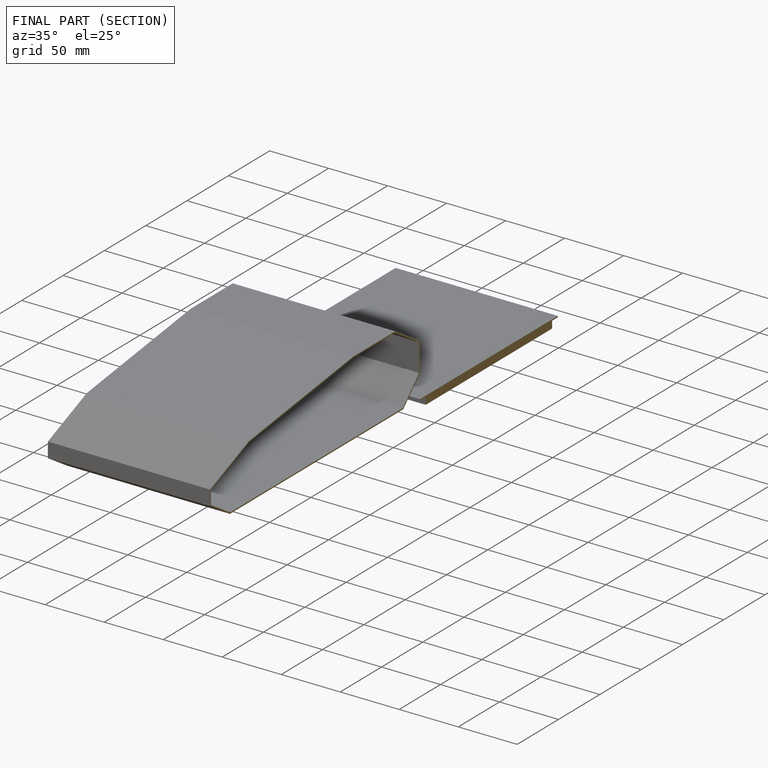
[diagram: finished part — half-section view (interior)]
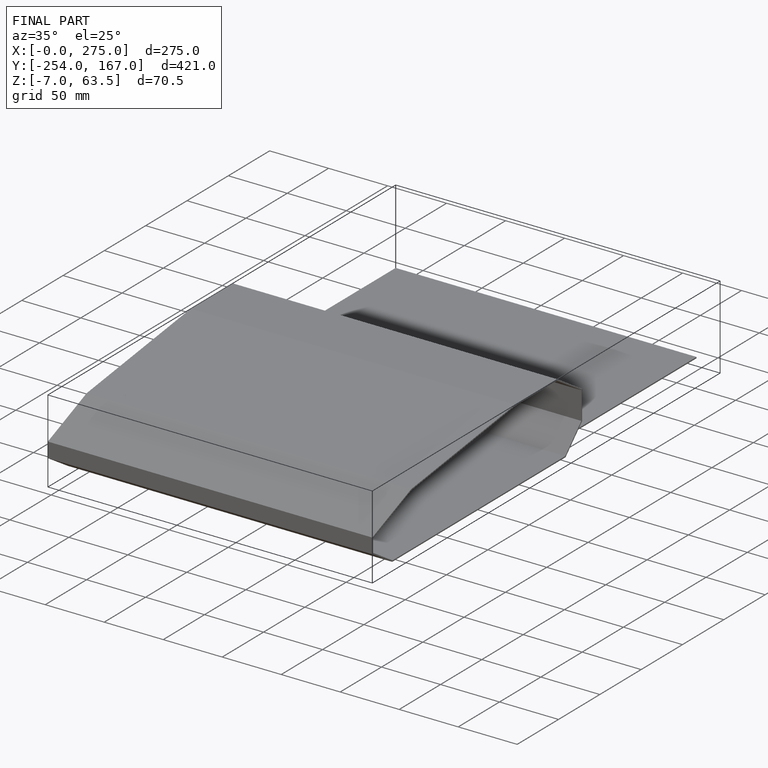
[diagram: finished part — iso view with bounding-box wireframe]
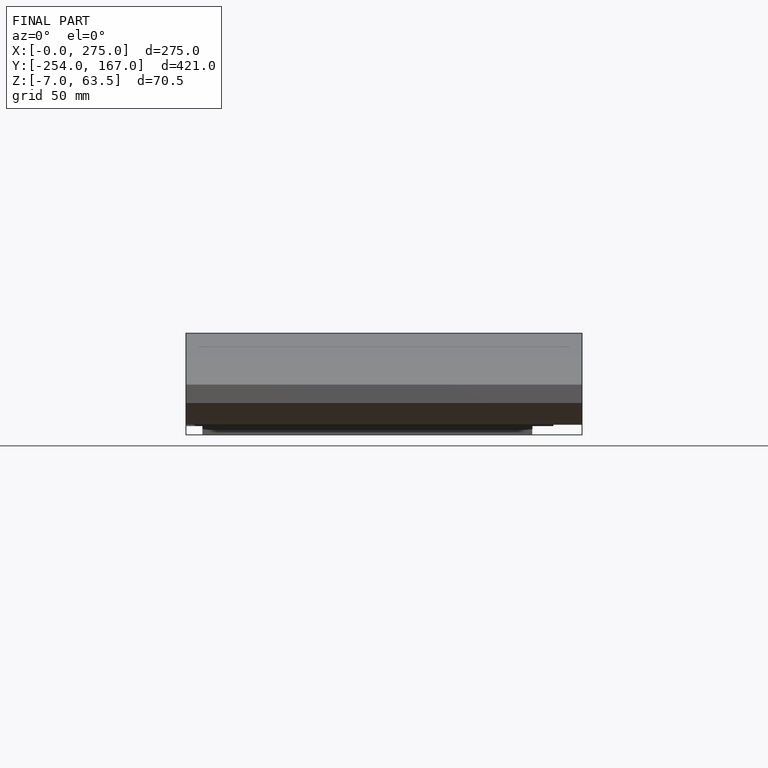
[diagram: finished part — front view with bounding-box wireframe]
